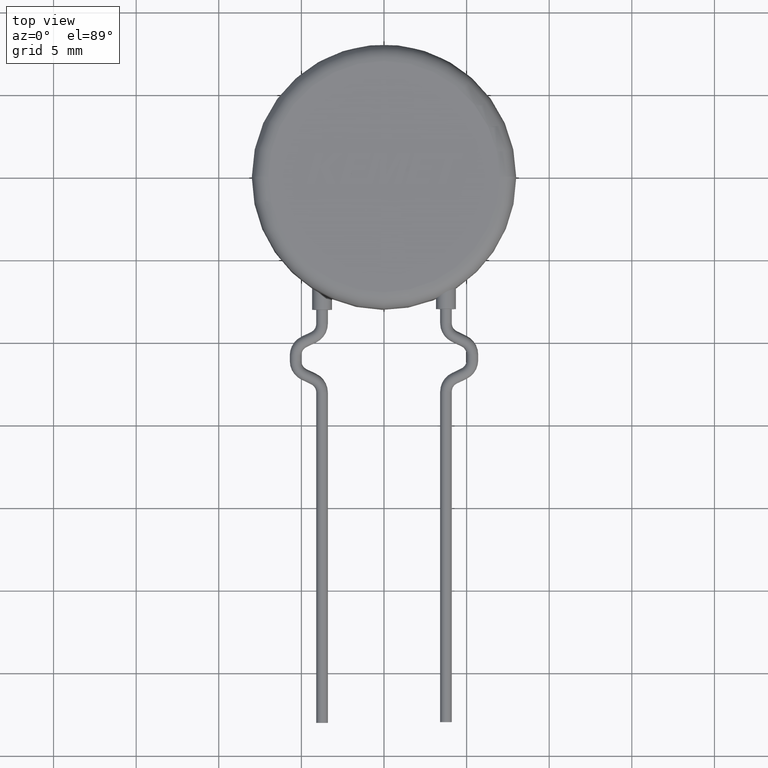
[diagram: clean part render]
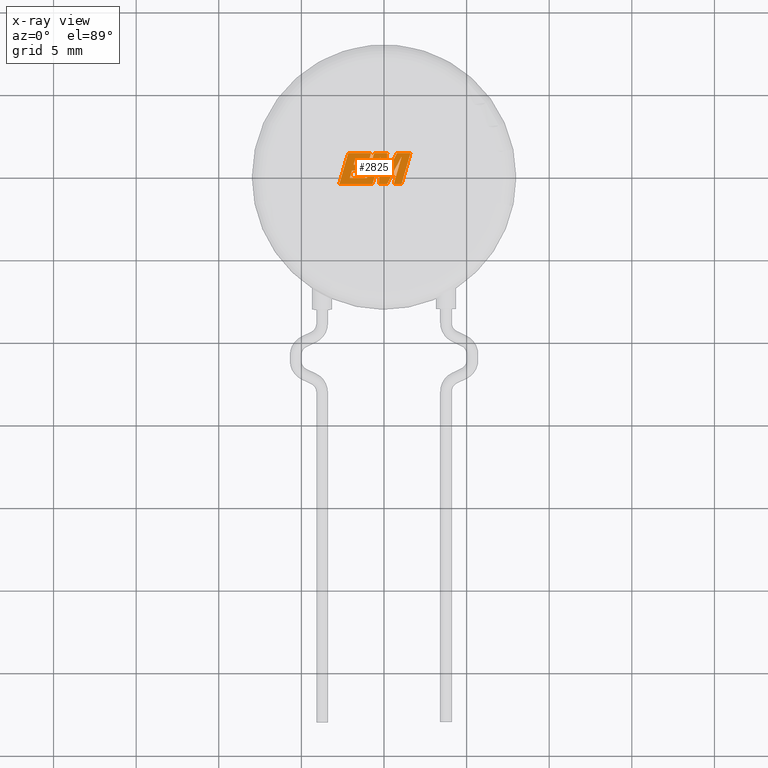
[diagram: x-ray — body ghosted, one internal face saturated and labeled with its STEP entity id]
A machine part, top view, then the same camera in x-ray: the body is ghosted and one INTERNAL B-rep face — a face not visible from any outside direction — is saturated and labeled: STEP entity #2825.
In plain terms, the highlighted planar face has unit normal (0, 0, -1).
Its self-contained STEP definition (entity closure, byte-faithful):
#142 = LINE ( 'NONE', #1169, #2524 ) ;
#161 = CARTESIAN_POINT ( 'NONE',  ( -0.8869323468139057587, 1.064351360104700772, 4.998999999999999666 ) ) ;
#193 = VECTOR ( 'NONE', #4192, 1000.000000000000000 ) ;
#233 = EDGE_CURVE ( 'NONE', #2707, #3886, #2847, .T. ) ;
#238 = DIRECTION ( 'NONE',  ( -1.000000000000000000, 0.000000000000000000, 0.000000000000000000 ) ) ;
#240 = LINE ( 'NONE', #518, #3674 ) ;
#291 = CARTESIAN_POINT ( 'NONE',  ( 1.604909352789751331, 1.419501945864818593, 4.998999999999999666 ) ) ;
#301 = CARTESIAN_POINT ( 'NONE',  ( -0.6911103868009905726, -0.4463250368678168267, 4.998999999999999666 ) ) ;
#304 = CARTESIAN_POINT ( 'NONE',  ( 0.1957545535707970741, 1.419501945864818149, 4.998999999999999666 ) ) ;
#326 = VERTEX_POINT ( 'NONE', #2935 ) ;
#336 = ORIENTED_EDGE ( 'NONE', *, *, #3555, .F. ) ;
#394 = VECTOR ( 'NONE', #1485, 1000.000000000000227 ) ;
#427 = ORIENTED_EDGE ( 'NONE', *, *, #2730, .F. ) ;
#450 = VERTEX_POINT ( 'NONE', #953 ) ;
#460 = VECTOR ( 'NONE', #3004, 1000.000000000000114 ) ;
#466 = VERTEX_POINT ( 'NONE', #2942 ) ;
#518 = CARTESIAN_POINT ( 'NONE',  ( -1.838992474754948647, 0.7173078363260645407, 4.998999999999999666 ) ) ;
#558 = VERTEX_POINT ( 'NONE', #3147 ) ;
#560 = CARTESIAN_POINT ( 'NONE',  ( -2.165797810300094106, 1.419501945864817705, 4.998999999999999666 ) ) ;
#577 = ORIENTED_EDGE ( 'NONE', *, *, #606, .F. ) ;
#606 = EDGE_CURVE ( 'NONE', #3846, #4356, #4200, .T. ) ;
#630 = CARTESIAN_POINT ( 'NONE',  ( 1.067913865636589410, -0.4463250368678163826, 4.998999999999999666 ) ) ;
#633 = VECTOR ( 'NONE', #2297, 1000.000000000000000 ) ;
#667 = LINE ( 'NONE', #2380, #3978 ) ;
#673 = CARTESIAN_POINT ( 'NONE',  ( -2.165797810300094106, 1.419501945864817705, 4.998999999999999666 ) ) ;
#722 = EDGE_CURVE ( 'NONE', #2993, #326, #2649, .T. ) ;
#753 = VECTOR ( 'NONE', #1682, 1000.000000000000000 ) ;
#779 = VERTEX_POINT ( 'NONE', #560 ) ;
#787 = ORIENTED_EDGE ( 'NONE', *, *, #1885, .F. ) ;
#827 = ORIENTED_EDGE ( 'NONE', *, *, #1176, .F. ) ;
#876 = LINE ( 'NONE', #1577, #1373 ) ;
#879 = EDGE_CURVE ( 'NONE', #2609, #2707, #876, .T. ) ;
#953 = CARTESIAN_POINT ( 'NONE',  ( 0.1910567310655477136, -0.4463250368678166047, 4.998999999999999666 ) ) ;
#962 = CARTESIAN_POINT ( 'NONE',  ( -0.8869323468139057587, 1.064351360104700772, 4.998999999999999666 ) ) ;
#964 = VERTEX_POINT ( 'NONE', #2572 ) ;
#968 = CARTESIAN_POINT ( 'NONE',  ( 0.1970842044045550689, 0.4141896342133338238, 4.998999999999997890 ) ) ;
#992 = LINE ( 'NONE', #2388, #3948 ) ;
#1003 = EDGE_CURVE ( 'NONE', #2104, #1483, #4228, .T. ) ;
#1012 = ORIENTED_EDGE ( 'NONE', *, *, #3504, .F. ) ;
#1020 = LINE ( 'NONE', #1947, #3283 ) ;
#1027 = CARTESIAN_POINT ( 'NONE',  ( -1.135950686434203050, 0.3723804315944925780, 4.998999999999999666 ) ) ;
#1110 = ORIENTED_EDGE ( 'NONE', *, *, #2303, .F. ) ;
#1161 = CARTESIAN_POINT ( 'NONE',  ( -1.023566453237470197, -0.4463250368678169377, 4.998999999999999666 ) ) ;
#1169 = CARTESIAN_POINT ( 'NONE',  ( 0.1239257491546233159, 0.08653117646504851490, 4.998999999999999666 ) ) ;
#1176 = EDGE_CURVE ( 'NONE', #3284, #1617, #4067, .T. ) ;
#1217 = EDGE_CURVE ( 'NONE', #1979, #2117, #1838, .T. ) ;
#1221 = CARTESIAN_POINT ( 'NONE',  ( -1.135950686434203050, 0.3723804315944925780, 4.998999999999999666 ) ) ;
#1269 = VECTOR ( 'NONE', #3488, 1000.000000000000000 ) ;
#1312 = EDGE_CURVE ( 'NONE', #1542, #964, #1020, .T. ) ;
#1317 = CARTESIAN_POINT ( 'NONE',  ( -0.5996594109620584367, 1.419501945864818149, 4.998999999999999666 ) ) ;
#1352 = VECTOR ( 'NONE', #1446, 1000.000000000000227 ) ;
#1372 = ORIENTED_EDGE ( 'NONE', *, *, #2419, .F. ) ;
#1373 = VECTOR ( 'NONE', #2940, 1000.000000000000000 ) ;
#1409 = CARTESIAN_POINT ( 'NONE',  ( 0.1957545535707970741, 1.419501945864818149, 4.998999999999999666 ) ) ;
#1431 = DIRECTION ( 'NONE',  ( -1.000000000000000000, 0.000000000000000000, 0.000000000000000000 ) ) ;
#1443 = CARTESIAN_POINT ( 'NONE',  ( 0.5932865459174190281, -0.4463250368678163826, 4.998999999999999666 ) ) ;
#1446 = DIRECTION ( 'NONE',  ( 0.4672245356054809950, 0.8841386957532412216, 0.000000000000000000 ) ) ;
#1479 = EDGE_CURVE ( 'NONE', #2247, #3284, #2629, .T. ) ;
#1483 = VERTEX_POINT ( 'NONE', #1589 ) ;
#1485 = DIRECTION ( 'NONE',  ( 0.2765786873027072934, 0.9609912745337031437, 0.000000000000000000 ) ) ;
#1542 = VERTEX_POINT ( 'NONE', #2782 ) ;
#1577 = CARTESIAN_POINT ( 'NONE',  ( 0.5932865459174190281, -0.4463250368678163826, 4.998999999999999666 ) ) ;
#1589 = CARTESIAN_POINT ( 'NONE',  ( -0.6911103868009905726, -0.4463250368678168267, 4.998999999999999666 ) ) ;
#1617 = VERTEX_POINT ( 'NONE', #1929 ) ;
#1634 = LINE ( 'NONE', #3585, #633 ) ;
#1651 = CARTESIAN_POINT ( 'NONE',  ( -0.3068720447621398617, -0.4463250368678168267, 4.998999999999999666 ) ) ;
#1653 = DIRECTION ( 'NONE',  ( 0.2796619658066604730, 0.9600985287360637166, 0.000000000000000000 ) ) ;
#1663 = EDGE_CURVE ( 'NONE', #964, #2247, #142, .T. ) ;
#1667 = DIRECTION ( 'NONE',  ( -1.000000000000000000, 0.000000000000000000, 0.000000000000000000 ) ) ;
#1677 = CARTESIAN_POINT ( 'NONE',  ( -1.037326975298746179, 0.7173078363260645407, 4.998999999999999666 ) ) ;
#1682 = DIRECTION ( 'NONE',  ( -1.000000000000000000, 2.627992318163165297E-16, 0.000000000000000000 ) ) ;
#1686 = EDGE_CURVE ( 'NONE', #2117, #779, #2438, .T. ) ;
#1790 = ORIENTED_EDGE ( 'NONE', *, *, #1686, .F. ) ;
#1838 = LINE ( 'NONE', #161, #3441 ) ;
#1873 = DIRECTION ( 'NONE',  ( 1.000000000000000000, 3.143786502315851949E-16, 0.000000000000000000 ) ) ;
#1879 = CARTESIAN_POINT ( 'NONE',  ( -1.037326975298746179, 0.7173078363260645407, 4.998999999999999666 ) ) ;
#1885 = EDGE_CURVE ( 'NONE', #326, #3931, #240, .T. ) ;
#1911 = VECTOR ( 'NONE', #2138, 1000.000000000000114 ) ;
#1929 = CARTESIAN_POINT ( 'NONE',  ( -1.034385187767230763, -0.09135032158837645688, 4.998999999999999666 ) ) ;
#1947 = CARTESIAN_POINT ( 'NONE',  ( 0.7857214287655426288, 1.419501945864818593, 4.998999999999999666 ) ) ;
#1979 = VERTEX_POINT ( 'NONE', #962 ) ;
#1996 = ORIENTED_EDGE ( 'NONE', *, *, #1663, .F. ) ;
#2103 = CARTESIAN_POINT ( 'NONE',  ( -2.703264666454254339, -0.4463250368678172708, 4.998999999999999666 ) ) ;
#2104 = VERTEX_POINT ( 'NONE', #2103 ) ;
#2107 = LINE ( 'NONE', #2465, #193 ) ;
#2113 = VECTOR ( 'NONE', #1431, 1000.000000000000000 ) ;
#2117 = VERTEX_POINT ( 'NONE', #3458 ) ;
#2138 = DIRECTION ( 'NONE',  ( -0.05602289266521665034, -0.9984294844892259713, 0.000000000000000000 ) ) ;
#2155 = CARTESIAN_POINT ( 'NONE',  ( -1.937502603360100384, 0.3723804315944925780, 4.998999999999999666 ) ) ;
#2164 = CARTESIAN_POINT ( 'NONE',  ( -1.737904022710164309, 1.064351360104700772, 4.998999999999999666 ) ) ;
#2173 = LINE ( 'NONE', #2155, #2408 ) ;
#2192 = ORIENTED_EDGE ( 'NONE', *, *, #2779, .F. ) ;
#2196 = DIRECTION ( 'NONE',  ( 0.05380819065979314947, 0.9985512899285240440, 0.000000000000000000 ) ) ;
#2207 = VECTOR ( 'NONE', #3719, 1000.000000000000114 ) ;
#2247 = VERTEX_POINT ( 'NONE', #1409 ) ;
#2250 = DIRECTION ( 'NONE',  ( 0.2734771135135810605, 0.9618785101998483800, 0.000000000000000000 ) ) ;
#2297 = DIRECTION ( 'NONE',  ( 1.000000000000000000, 4.198073881304329234E-16, 0.000000000000000000 ) ) ;
#2303 = EDGE_CURVE ( 'NONE', #466, #2609, #4088, .T. ) ;
#2331 = ORIENTED_EDGE ( 'NONE', *, *, #4318, .F. ) ;
#2376 = DIRECTION ( 'NONE',  ( -0.4446908369572518116, -0.8956841293258795966, 0.000000000000000000 ) ) ;
#2380 = CARTESIAN_POINT ( 'NONE',  ( -1.034385187767230763, -0.09135032158837645688, 4.998999999999999666 ) ) ;
#2388 = CARTESIAN_POINT ( 'NONE',  ( -2.069769459996408489, -0.09135032158837645688, 4.998999999999999666 ) ) ;
#2408 = VECTOR ( 'NONE', #3831, 1000.000000000000000 ) ;
#2419 = EDGE_CURVE ( 'NONE', #450, #466, #3785, .T. ) ;
#2438 = LINE ( 'NONE', #3426, #1269 ) ;
#2443 = ORIENTED_EDGE ( 'NONE', *, *, #1479, .F. ) ;
#2465 = CARTESIAN_POINT ( 'NONE',  ( -1.737904022710164309, 1.064351360104700772, 4.998999999999999666 ) ) ;
#2471 = VECTOR ( 'NONE', #4380, 1000.000000000000227 ) ;
#2515 = CARTESIAN_POINT ( 'NONE',  ( 1.067913865636589410, -0.4463250368678163826, 4.998999999999999666 ) ) ;
#2524 = VECTOR ( 'NONE', #2196, 1000.000000000000114 ) ;
#2572 = CARTESIAN_POINT ( 'NONE',  ( 0.1239257491546233159, 0.08653117646504851490, 4.998999999999999666 ) ) ;
#2579 = ORIENTED_EDGE ( 'NONE', *, *, #233, .F. ) ;
#2609 = VERTEX_POINT ( 'NONE', #1443 ) ;
#2612 = AXIS2_PLACEMENT_3D ( 'NONE', #968, #3320, #3666 ) ;
#2629 = LINE ( 'NONE', #304, #753 ) ;
#2649 = LINE ( 'NONE', #1677, #2113 ) ;
#2678 = VERTEX_POINT ( 'NONE', #1027 ) ;
#2700 = ORIENTED_EDGE ( 'NONE', *, *, #3943, .F. ) ;
#2707 = VERTEX_POINT ( 'NONE', #630 ) ;
#2720 = FACE_OUTER_BOUND ( 'NONE', #3310, .T. ) ;
#2730 = EDGE_CURVE ( 'NONE', #3886, #1542, #3330, .T. ) ;
#2732 = CARTESIAN_POINT ( 'NONE',  ( 1.604909352789751331, 1.419501945864818593, 4.998999999999999666 ) ) ;
#2735 = DIRECTION ( 'NONE',  ( 0.2742846567084410436, 0.9616485465565539625, 0.000000000000000000 ) ) ;
#2753 = LINE ( 'NONE', #673, #460 ) ;
#2779 = EDGE_CURVE ( 'NONE', #558, #3383, #992, .T. ) ;
#2780 = CARTESIAN_POINT ( 'NONE',  ( 0.1910567310655477136, -0.4463250368678166047, 4.998999999999999666 ) ) ;
#2782 = CARTESIAN_POINT ( 'NONE',  ( 0.7857214287655426288, 1.419501945864818593, 4.998999999999999666 ) ) ;
#2790 = CARTESIAN_POINT ( 'NONE',  ( -0.2136662203277694405, 1.214771682959007393, 4.998999999999999666 ) ) ;
#2825 = ADVANCED_FACE ( 'NONE', ( #2720 ), #3998, .T. ) ;
#2847 = LINE ( 'NONE', #2515, #394 ) ;
#2880 = ORIENTED_EDGE ( 'NONE', *, *, #4349, .F. ) ;
#2935 = CARTESIAN_POINT ( 'NONE',  ( -1.838992474754948647, 0.7173078363260645407, 4.998999999999999666 ) ) ;
#2940 = DIRECTION ( 'NONE',  ( 1.000000000000000000, 0.000000000000000000, 0.000000000000000000 ) ) ;
#2942 = CARTESIAN_POINT ( 'NONE',  ( 1.073093229021950590, 1.222770953348802037, 4.998999999999999666 ) ) ;
#2977 = ORIENTED_EDGE ( 'NONE', *, *, #1217, .F. ) ;
#2993 = VERTEX_POINT ( 'NONE', #1879 ) ;
#3004 = DIRECTION ( 'NONE',  ( -0.2768028711044295265, -0.9609267248590521726, 0.000000000000000000 ) ) ;
#3135 = CARTESIAN_POINT ( 'NONE',  ( -0.5996594109620584367, 1.419501945864818149, 4.998999999999999666 ) ) ;
#3147 = CARTESIAN_POINT ( 'NONE',  ( -2.069769459996408489, -0.09135032158837645688, 4.998999999999999666 ) ) ;
#3180 = VECTOR ( 'NONE', #4173, 1000.000000000000000 ) ;
#3201 = EDGE_CURVE ( 'NONE', #3383, #2678, #2173, .T. ) ;
#3281 = ORIENTED_EDGE ( 'NONE', *, *, #3201, .F. ) ;
#3283 = VECTOR ( 'NONE', #2376, 1000.000000000000000 ) ;
#3284 = VERTEX_POINT ( 'NONE', #1317 ) ;
#3310 = EDGE_LOOP ( 'NONE', ( #427, #2579, #4132, #1110, #1372, #336, #577, #2331, #3774, #3399, #1790, #2977, #1012, #787, #3914, #2700, #3281, #2192, #2880, #827, #2443, #1996, #4262 ) ) ;
#3311 = VECTOR ( 'NONE', #1873, 1000.000000000000000 ) ;
#3320 = DIRECTION ( 'NONE',  ( 0.000000000000000000, 0.000000000000000000, -1.000000000000000000 ) ) ;
#3330 = LINE ( 'NONE', #291, #4081 ) ;
#3334 = CARTESIAN_POINT ( 'NONE',  ( 1.073093229021950590, 1.222770953348802037, 4.998999999999999666 ) ) ;
#3370 = EDGE_CURVE ( 'NONE', #779, #2104, #2753, .T. ) ;
#3383 = VERTEX_POINT ( 'NONE', #3734 ) ;
#3392 = LINE ( 'NONE', #301, #2207 ) ;
#3399 = ORIENTED_EDGE ( 'NONE', *, *, #3370, .F. ) ;
#3426 = CARTESIAN_POINT ( 'NONE',  ( -0.7859574772992985459, 1.419501945864818149, 4.998999999999999666 ) ) ;
#3435 = DIRECTION ( 'NONE',  ( -0.2765164248279863290, -0.9610091918396767019, 0.000000000000000000 ) ) ;
#3441 = VECTOR ( 'NONE', #2250, 1000.000000000000114 ) ;
#3458 = CARTESIAN_POINT ( 'NONE',  ( -0.7859574772992985459, 1.419501945864818149, 4.998999999999999666 ) ) ;
#3488 = DIRECTION ( 'NONE',  ( -1.000000000000000000, -1.514915703330761900E-16, 0.000000000000000000 ) ) ;
#3491 = VECTOR ( 'NONE', #3435, 1000.000000000000114 ) ;
#3495 = LINE ( 'NONE', #1221, #3180 ) ;
#3504 = EDGE_CURVE ( 'NONE', #3931, #1979, #2107, .T. ) ;
#3555 = EDGE_CURVE ( 'NONE', #4356, #450, #1634, .T. ) ;
#3585 = CARTESIAN_POINT ( 'NONE',  ( -0.3068720447621398617, -0.4463250368678168267, 4.998999999999999666 ) ) ;
#3666 = DIRECTION ( 'NONE',  ( -1.000000000000000000, 0.000000000000000000, 0.000000000000000000 ) ) ;
#3674 = VECTOR ( 'NONE', #1653, 1000.000000000000114 ) ;
#3719 = DIRECTION ( 'NONE',  ( 0.2762426851186988719, 0.9610879142505182049, 0.000000000000000000 ) ) ;
#3734 = CARTESIAN_POINT ( 'NONE',  ( -1.937502603360100384, 0.3723804315944925780, 4.998999999999999666 ) ) ;
#3774 = ORIENTED_EDGE ( 'NONE', *, *, #1003, .F. ) ;
#3785 = LINE ( 'NONE', #2780, #1352 ) ;
#3831 = DIRECTION ( 'NONE',  ( 1.000000000000000000, 0.000000000000000000, 0.000000000000000000 ) ) ;
#3846 = VERTEX_POINT ( 'NONE', #4151 ) ;
#3886 = VERTEX_POINT ( 'NONE', #2732 ) ;
#3914 = ORIENTED_EDGE ( 'NONE', *, *, #722, .F. ) ;
#3931 = VERTEX_POINT ( 'NONE', #2164 ) ;
#3943 = EDGE_CURVE ( 'NONE', #2678, #2993, #3495, .T. ) ;
#3948 = VECTOR ( 'NONE', #2735, 999.9999999999998863 ) ;
#3978 = VECTOR ( 'NONE', #238, 1000.000000000000000 ) ;
#3998 = PLANE ( 'NONE',  #2612 ) ;
#4067 = LINE ( 'NONE', #3135, #3491 ) ;
#4081 = VECTOR ( 'NONE', #1667, 1000.000000000000000 ) ;
#4088 = LINE ( 'NONE', #3334, #2471 ) ;
#4132 = ORIENTED_EDGE ( 'NONE', *, *, #879, .F. ) ;
#4151 = CARTESIAN_POINT ( 'NONE',  ( -0.2136662203277694405, 1.214771682959007393, 4.998999999999999666 ) ) ;
#4173 = DIRECTION ( 'NONE',  ( 0.2749093116859782637, 0.9614701609245820402, 0.000000000000000000 ) ) ;
#4192 = DIRECTION ( 'NONE',  ( 1.000000000000000000, 0.000000000000000000, 0.000000000000000000 ) ) ;
#4200 = LINE ( 'NONE', #2790, #1911 ) ;
#4228 = LINE ( 'NONE', #1161, #3311 ) ;
#4262 = ORIENTED_EDGE ( 'NONE', *, *, #1312, .F. ) ;
#4318 = EDGE_CURVE ( 'NONE', #1483, #3846, #3392, .T. ) ;
#4349 = EDGE_CURVE ( 'NONE', #1617, #558, #667, .T. ) ;
#4356 = VERTEX_POINT ( 'NONE', #1651 ) ;
#4380 = DIRECTION ( 'NONE',  ( -0.2762763573717051946, -0.9610782352948284979, 0.000000000000000000 ) ) ;